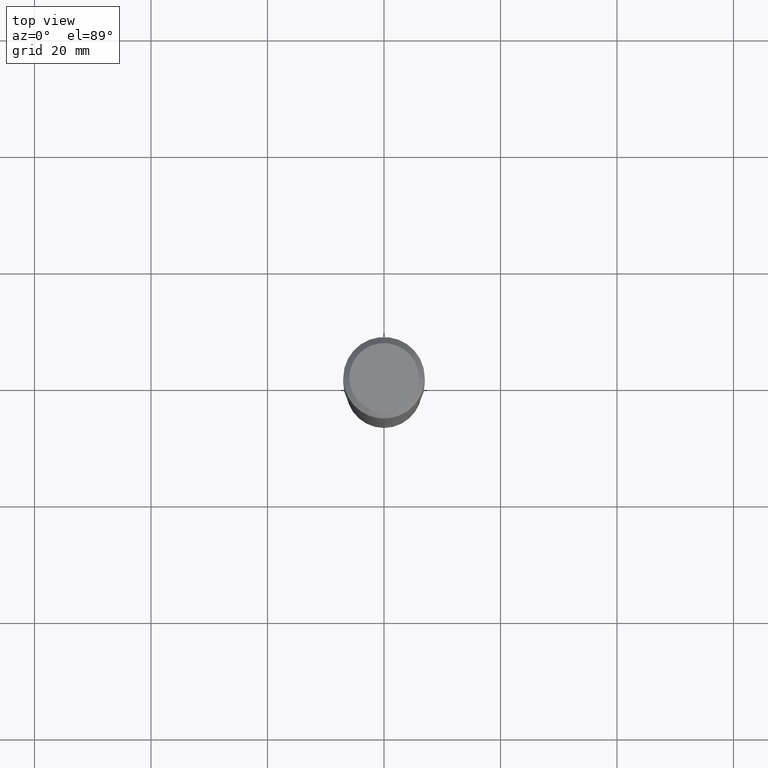
[diagram: clean part render]
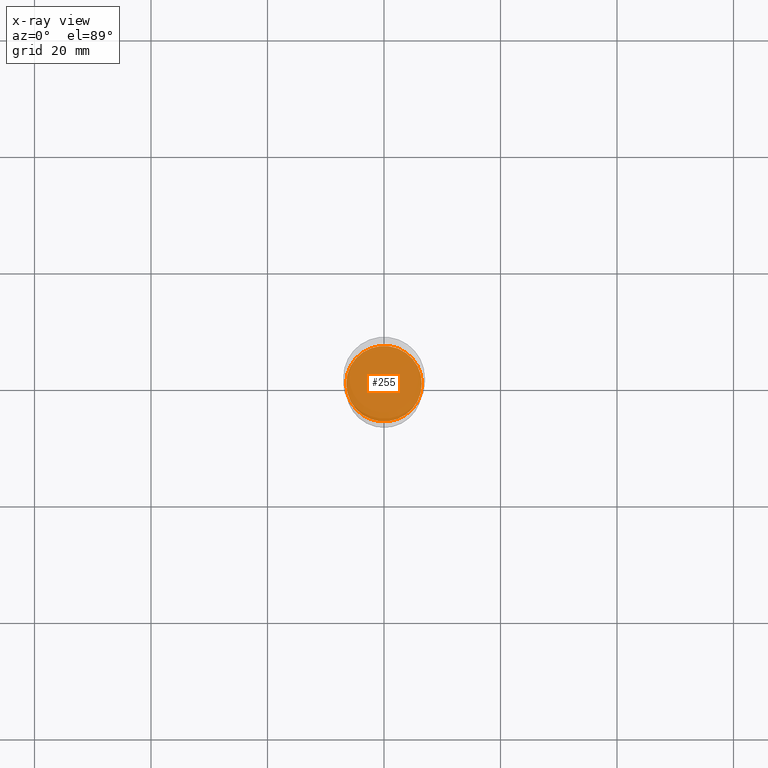
[diagram: x-ray — body ghosted, one internal face saturated and labeled with its STEP entity id]
A machine part, top view, then the same camera in x-ray: the body is ghosted and one INTERNAL B-rep face — a face not visible from any outside direction — is saturated and labeled: STEP entity #255.
In plain terms, the highlighted planar face has unit normal (-0, 0, 1).
Its self-contained STEP definition (entity closure, byte-faithful):
#10 = DIRECTION ( 'NONE',  ( -2.445468806185136597E-29, 3.491481338843145583E-15, 1.000000000000000000 ) ) ;
#38 = AXIS2_PLACEMENT_3D ( 'NONE', #313, #244, #321 ) ;
#40 = DIRECTION ( 'NONE',  ( 1.000000000000000000, -6.982962677686265922E-15, 4.876176775795935793E-29 ) ) ;
#124 = AXIS2_PLACEMENT_3D ( 'NONE', #374, #10, #338 ) ;
#138 = CIRCLE ( 'NONE', #124, 0.2554000000000000159 ) ;
#144 = CARTESIAN_POINT ( 'NONE',  ( 5.776686413970529753E-29, -8.247577218615278049E-15, -2.362199999999999633 ) ) ;
#150 = CARTESIAN_POINT ( 'NONE',  ( 0.2554000000000000159, -1.003102588649635078E-14, -2.362199999999999633 ) ) ;
#156 = EDGE_CURVE ( 'NONE', #196, #297, #393, .T. ) ;
#160 = ORIENTED_EDGE ( 'NONE', *, *, #389, .F. ) ;
#184 = DIRECTION ( 'NONE',  ( -2.438088387897960049E-29, 3.491481338843145188E-15, 1.000000000000000000 ) ) ;
#185 = PLANE ( 'NONE',  #428 ) ;
#186 = ORIENTED_EDGE ( 'NONE', *, *, #156, .F. ) ;
#196 = VERTEX_POINT ( 'NONE', #372 ) ;
#217 = FACE_OUTER_BOUND ( 'NONE', #407, .T. ) ;
#244 = DIRECTION ( 'NONE',  ( -2.445468806185136597E-29, 3.491481338843145583E-15, 1.000000000000000000 ) ) ;
#255 = ADVANCED_FACE ( 'NONE', ( #217 ), #185, .F. ) ;
#297 = VERTEX_POINT ( 'NONE', #150 ) ;
#313 = CARTESIAN_POINT ( 'NONE',  ( 5.776686413970529753E-29, -8.247577218615278049E-15, -2.362199999999999633 ) ) ;
#321 = DIRECTION ( 'NONE',  ( 1.000000000000000000, -6.982962677686267499E-15, 0.000000000000000000 ) ) ;
#338 = DIRECTION ( 'NONE',  ( 1.000000000000000000, -6.982962677686267499E-15, 0.000000000000000000 ) ) ;
#372 = CARTESIAN_POINT ( 'NONE',  ( -0.2554000000000000159, -6.430201844309871254E-15, -2.362199999999999633 ) ) ;
#374 = CARTESIAN_POINT ( 'NONE',  ( 5.776686413970529753E-29, -8.247577218615278049E-15, -2.362199999999999633 ) ) ;
#389 = EDGE_CURVE ( 'NONE', #297, #196, #138, .T. ) ;
#393 = CIRCLE ( 'NONE', #38, 0.2554000000000000159 ) ;
#407 = EDGE_LOOP ( 'NONE', ( #160, #186 ) ) ;
#428 = AXIS2_PLACEMENT_3D ( 'NONE', #144, #184, #40 ) ;